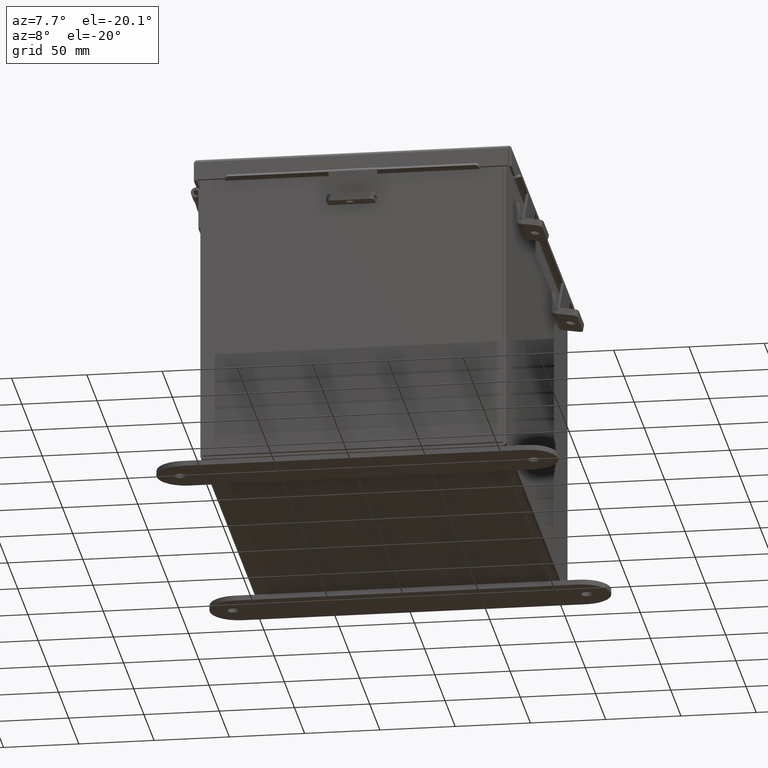
[diagram: clean part render]
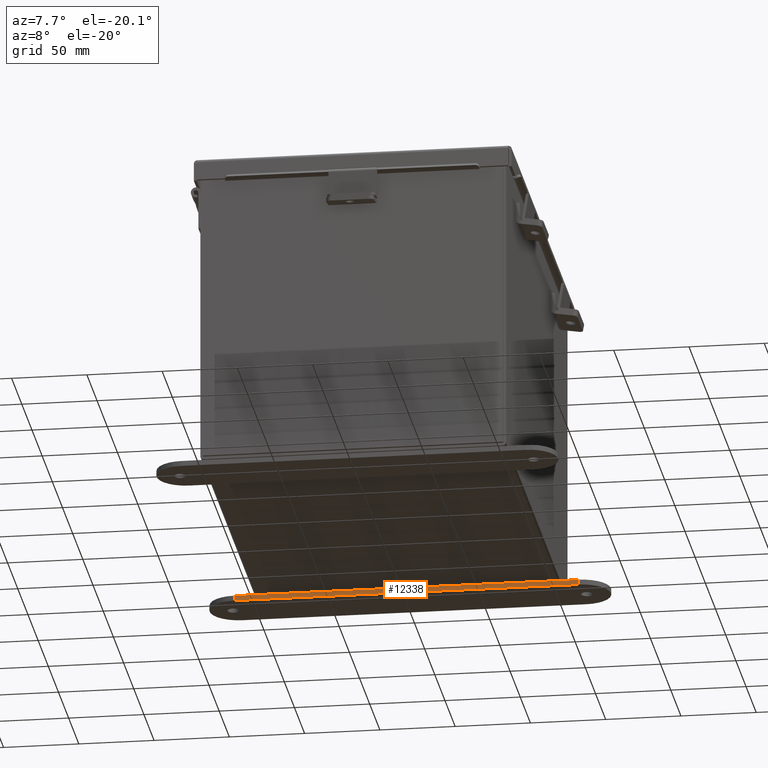
[diagram: same view with one face highlighted and labeled with its STEP entity id]
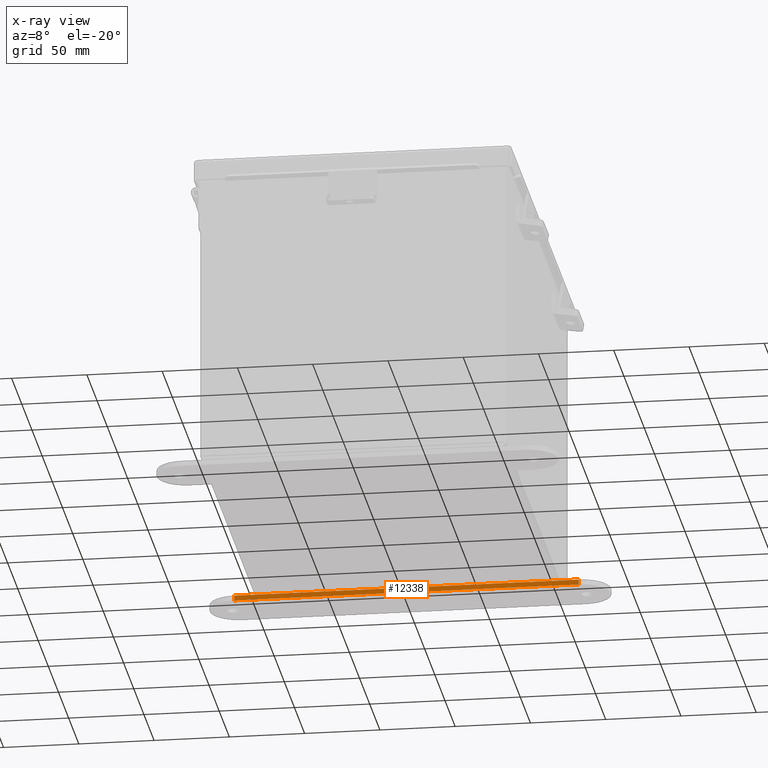
[diagram: x-ray of the same camera — body ghosted, the highlighted face saturated]
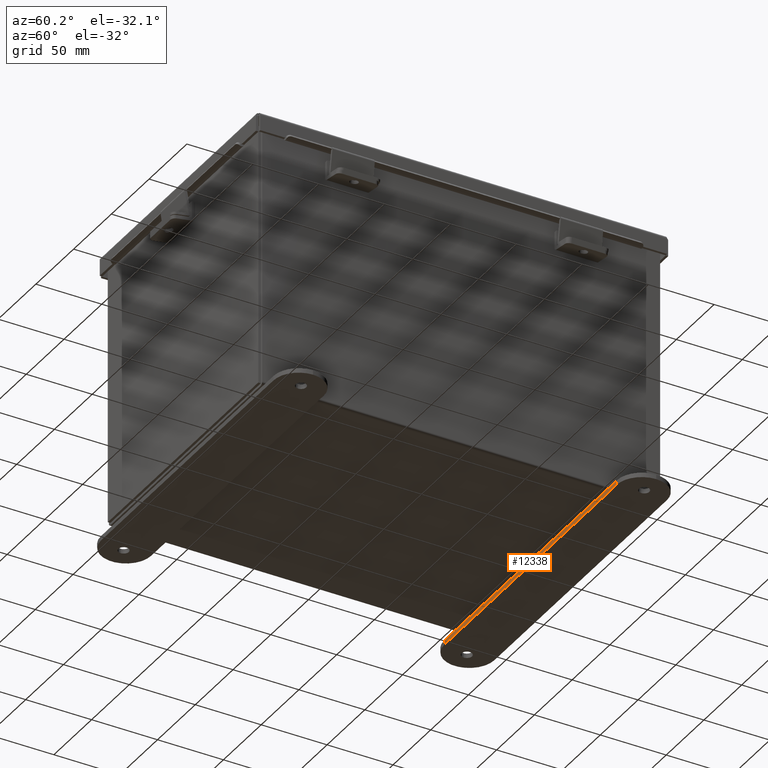
[diagram: same view with one face highlighted and labeled with its STEP entity id]
A machine part, auxiliary view. The second image highlights one B-rep face of the part: STEP entity #12338.
The next image is the same camera in x-ray: the body ghosted, the highlighted face saturated — about 0% of this face is hidden behind the body in this view.
A second angle (auxiliary view) of the same face is appended — the face is thin or edge-on in the first view.
In plain terms, the highlighted planar face has unit normal (-0, -1, 0).
Its self-contained STEP definition (entity closure, byte-faithful):
#617 = CARTESIAN_POINT ( 'NONE',  ( -4.499999999999999100, 1.162094064949612300, 0.0000000000000000000 ) ) ;
#760 = DIRECTION ( 'NONE',  ( -1.000000000000000000, -1.214154663850783900E-016, -0.0000000000000000000 ) ) ;
#1168 = VERTEX_POINT ( 'NONE', #4139 ) ;
#1209 = LINE ( 'NONE', #13160, #1600 ) ;
#1600 = VECTOR ( 'NONE', #10692, 39.37007874015748100 ) ;
#2414 = VERTEX_POINT ( 'NONE', #14825 ) ;
#2638 = VERTEX_POINT ( 'NONE', #6770 ) ;
#4139 = CARTESIAN_POINT ( 'NONE',  ( 4.499999999999999100, 1.162094064949613400, -0.1345000000000000100 ) ) ;
#4529 = VERTEX_POINT ( 'NONE', #5862 ) ;
#4701 = PLANE ( 'NONE',  #7954 ) ;
#4734 = VECTOR ( 'NONE', #11465, 39.37007874015748100 ) ;
#4826 = LINE ( 'NONE', #8124, #8090 ) ;
#5548 = EDGE_LOOP ( 'NONE', ( #10101, #10467, #8212, #12569 ) ) ;
#5862 = CARTESIAN_POINT ( 'NONE',  ( 4.499999999999999100, 1.162094064949613400, 0.0000000000000000000 ) ) ;
#6770 = CARTESIAN_POINT ( 'NONE',  ( -4.499999999999999100, 1.162094064949612300, 0.0000000000000000000 ) ) ;
#7176 = DIRECTION ( 'NONE',  ( -1.214154663850783900E-016, 1.000000000000000000, 0.0000000000000000000 ) ) ;
#7954 = AXIS2_PLACEMENT_3D ( 'NONE', #14483, #7176, #15713 ) ;
#7993 = LINE ( 'NONE', #10290, #4734 ) ;
#7998 = LINE ( 'NONE', #617, #9152 ) ;
#8090 = VECTOR ( 'NONE', #760, 39.37007874015748100 ) ;
#8124 = CARTESIAN_POINT ( 'NONE',  ( -4.499999999999999100, 1.162094064949612300, -0.1345000000000000100 ) ) ;
#8212 = ORIENTED_EDGE ( 'NONE', *, *, #12762, .T. ) ;
#9143 = DIRECTION ( 'NONE',  ( -1.000000000000000000, -1.214154663850783900E-016, -0.0000000000000000000 ) ) ;
#9152 = VECTOR ( 'NONE', #9143, 39.37007874015748100 ) ;
#10101 = ORIENTED_EDGE ( 'NONE', *, *, #15527, .F. ) ;
#10220 = FACE_OUTER_BOUND ( 'NONE', #5548, .T. ) ;
#10290 = CARTESIAN_POINT ( 'NONE',  ( 4.499999999999999100, 1.162094064949613400, -0.1345000000000000100 ) ) ;
#10467 = ORIENTED_EDGE ( 'NONE', *, *, #14800, .F. ) ;
#10692 = DIRECTION ( 'NONE',  ( 0.0000000000000000000, 0.0000000000000000000, 1.000000000000000000 ) ) ;
#11465 = DIRECTION ( 'NONE',  ( 0.0000000000000000000, 0.0000000000000000000, 1.000000000000000000 ) ) ;
#12280 = EDGE_CURVE ( 'NONE', #2414, #2638, #1209, .T. ) ;
#12338 = ADVANCED_FACE ( 'NONE', ( #10220 ), #4701, .T. ) ;
#12569 = ORIENTED_EDGE ( 'NONE', *, *, #12280, .T. ) ;
#12762 = EDGE_CURVE ( 'NONE', #1168, #2414, #4826, .T. ) ;
#13160 = CARTESIAN_POINT ( 'NONE',  ( -4.499999999999999100, 1.162094064949612300, -0.1345000000000000100 ) ) ;
#14483 = CARTESIAN_POINT ( 'NONE',  ( -4.499999999999999100, 1.162094064949612300, -0.1345000000000000100 ) ) ;
#14800 = EDGE_CURVE ( 'NONE', #1168, #4529, #7993, .T. ) ;
#14825 = CARTESIAN_POINT ( 'NONE',  ( -4.499999999999999100, 1.162094064949612300, -0.1345000000000000100 ) ) ;
#15527 = EDGE_CURVE ( 'NONE', #4529, #2638, #7998, .T. ) ;
#15713 = DIRECTION ( 'NONE',  ( -1.000000000000000000, -1.214154663850783900E-016, 0.0000000000000000000 ) ) ;